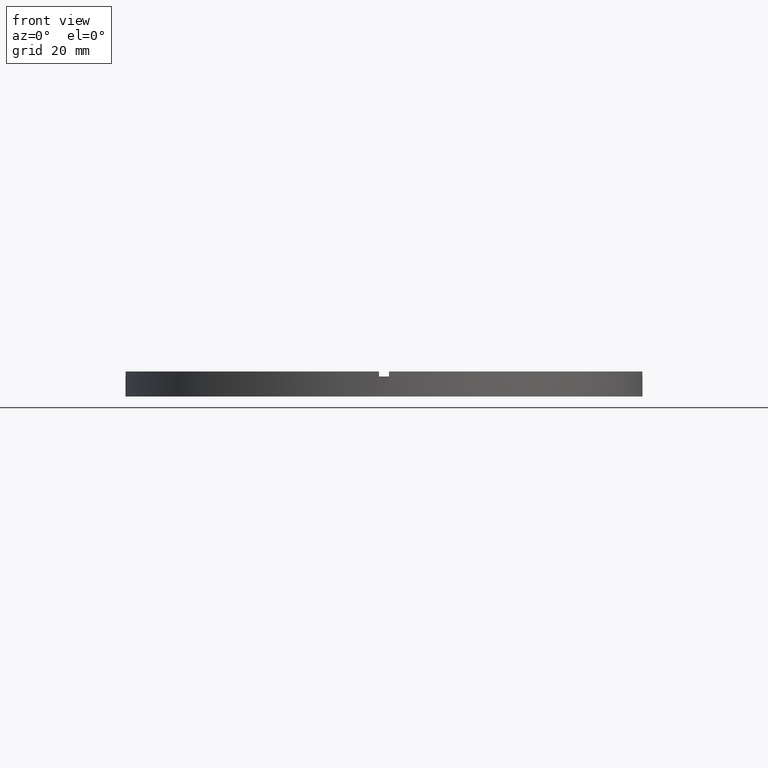
[diagram: clean part render]
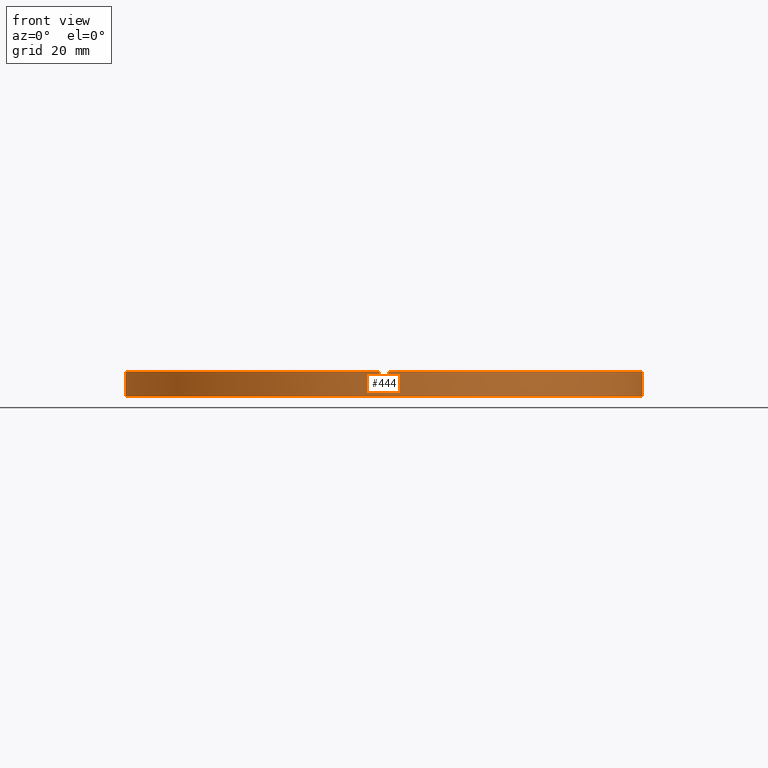
[diagram: same view with one face highlighted and labeled with its STEP entity id]
A machine part, front view. The second image highlights one B-rep face of the part: STEP entity #444.
In plain terms, the highlighted cylindrical surface (partial cylindrical patch) has radius 51.5 mm, axis along (-0, -0, -1).
Its self-contained STEP definition (entity closure, byte-faithful):
#9 = CIRCLE ( 'NONE', #555, 51.50000000000000000 ) ;
#15 = CIRCLE ( 'NONE', #724, 51.50000000000000000 ) ;
#23 = VECTOR ( 'NONE', #202, 1000.000000000000000 ) ;
#46 = CARTESIAN_POINT ( 'NONE',  ( -51.49029034682169481, -1.000000000000031974, 4.000000000000000000 ) ) ;
#48 = DIRECTION ( 'NONE',  ( -0.000000000000000000, 0.000000000000000000, 1.000000000000000000 ) ) ;
#52 = CARTESIAN_POINT ( 'NONE',  ( 51.49029034682169481, -1.000000000000154765, 5.000000000000000000 ) ) ;
#58 = CARTESIAN_POINT ( 'NONE',  ( 0.000000000000000000, 0.000000000000000000, 5.000000000000000000 ) ) ;
#62 = DIRECTION ( 'NONE',  ( 1.000000000000000000, 0.000000000000000000, 0.000000000000000000 ) ) ;
#63 = LINE ( 'NONE', #409, #64 ) ;
#64 = VECTOR ( 'NONE', #234, 1000.000000000000000 ) ;
#66 = DIRECTION ( 'NONE',  ( 1.000000000000000000, 0.000000000000000000, 0.000000000000000000 ) ) ;
#72 = VECTOR ( 'NONE', #738, 1000.000000000000000 ) ;
#89 = EDGE_CURVE ( 'NONE', #512, #117, #9, .T. ) ;
#93 = DIRECTION ( 'NONE',  ( -0.000000000000000000, -0.000000000000000000, -1.000000000000000000 ) ) ;
#102 = ORIENTED_EDGE ( 'NONE', *, *, #465, .F. ) ;
#103 = DIRECTION ( 'NONE',  ( 1.000000000000000000, 0.000000000000000000, 0.000000000000000000 ) ) ;
#108 = ORIENTED_EDGE ( 'NONE', *, *, #252, .F. ) ;
#112 = CARTESIAN_POINT ( 'NONE',  ( 0.9999999999998436806, -51.49029034682169481, 4.000000000000000000 ) ) ;
#115 = DIRECTION ( 'NONE',  ( 1.000000000000000000, 0.000000000000000000, 0.000000000000000000 ) ) ;
#117 = VERTEX_POINT ( 'NONE', #261 ) ;
#125 = CARTESIAN_POINT ( 'NONE',  ( 51.50000000000000000, 6.306931015608868807E-15, 4.000000000000000000 ) ) ;
#126 = ORIENTED_EDGE ( 'NONE', *, *, #458, .F. ) ;
#133 = VERTEX_POINT ( 'NONE', #210 ) ;
#135 = AXIS2_PLACEMENT_3D ( 'NONE', #632, #48, #349 ) ;
#139 = VERTEX_POINT ( 'NONE', #46 ) ;
#156 = EDGE_CURVE ( 'NONE', #403, #117, #571, .T. ) ;
#171 = ORIENTED_EDGE ( 'NONE', *, *, #636, .T. ) ;
#188 = CARTESIAN_POINT ( 'NONE',  ( 0.000000000000000000, 0.000000000000000000, 5.000000000000000000 ) ) ;
#194 = CARTESIAN_POINT ( 'NONE',  ( 0.000000000000000000, 0.000000000000000000, 5.000000000000000000 ) ) ;
#200 = DIRECTION ( 'NONE',  ( 1.000000000000000000, 0.000000000000000000, 0.000000000000000000 ) ) ;
#202 = DIRECTION ( 'NONE',  ( -0.000000000000000000, -0.000000000000000000, -1.000000000000000000 ) ) ;
#210 = CARTESIAN_POINT ( 'NONE',  ( -51.49029034682169481, -1.000000000000031974, 5.000000000000000000 ) ) ;
#218 = ORIENTED_EDGE ( 'NONE', *, *, #89, .T. ) ;
#234 = DIRECTION ( 'NONE',  ( -0.000000000000000000, -0.000000000000000000, -1.000000000000000000 ) ) ;
#240 = DIRECTION ( 'NONE',  ( -0.000000000000000000, -0.000000000000000000, -1.000000000000000000 ) ) ;
#249 = CARTESIAN_POINT ( 'NONE',  ( 0.000000000000000000, 0.000000000000000000, 0.000000000000000000 ) ) ;
#252 = EDGE_CURVE ( 'NONE', #133, #394, #290, .T. ) ;
#257 = CARTESIAN_POINT ( 'NONE',  ( -1.000000000000156319, -51.49029034682169481, 5.000000000000000000 ) ) ;
#258 = VERTEX_POINT ( 'NONE', #550 ) ;
#261 = CARTESIAN_POINT ( 'NONE',  ( 51.50000000000000000, 6.306931015608868807E-15, 0.000000000000000000 ) ) ;
#264 = VERTEX_POINT ( 'NONE', #112 ) ;
#273 = CYLINDRICAL_SURFACE ( 'NONE', #753, 51.50000000000000000 ) ;
#275 = LINE ( 'NONE', #52, #277 ) ;
#277 = VECTOR ( 'NONE', #600, 1000.000000000000000 ) ;
#279 = VECTOR ( 'NONE', #677, 1000.000000000000000 ) ;
#290 = CIRCLE ( 'NONE', #692, 51.50000000000000000 ) ;
#302 = DIRECTION ( 'NONE',  ( 0.000000000000000000, 0.000000000000000000, 1.000000000000000000 ) ) ;
#311 = CIRCLE ( 'NONE', #469, 51.50000000000000000 ) ;
#312 = VECTOR ( 'NONE', #93, 1000.000000000000000 ) ;
#330 = LINE ( 'NONE', #657, #312 ) ;
#349 = DIRECTION ( 'NONE',  ( 1.000000000000000000, 0.000000000000000000, 0.000000000000000000 ) ) ;
#363 = EDGE_CURVE ( 'NONE', #637, #394, #570, .T. ) ;
#377 = CARTESIAN_POINT ( 'NONE',  ( 0.9999999999998436806, -51.49029034682169481, 5.000000000000000000 ) ) ;
#383 = CARTESIAN_POINT ( 'NONE',  ( -1.000000000000156319, -51.49029034682169481, 5.000000000000000000 ) ) ;
#387 = VERTEX_POINT ( 'NONE', #750 ) ;
#390 = ORIENTED_EDGE ( 'NONE', *, *, #731, .T. ) ;
#394 = VERTEX_POINT ( 'NONE', #383 ) ;
#396 = VERTEX_POINT ( 'NONE', #464 ) ;
#403 = VERTEX_POINT ( 'NONE', #125 ) ;
#406 = VERTEX_POINT ( 'NONE', #377 ) ;
#409 = CARTESIAN_POINT ( 'NONE',  ( 0.9999999999998436806, -51.49029034682169481, 5.000000000000000000 ) ) ;
#434 = CARTESIAN_POINT ( 'NONE',  ( -51.50000000000000000, 0.000000000000000000, 0.000000000000000000 ) ) ;
#444 = ADVANCED_FACE ( 'NONE', ( #538 ), #273, .T. ) ;
#458 = EDGE_CURVE ( 'NONE', #387, #403, #15, .T. ) ;
#461 = EDGE_CURVE ( 'NONE', #387, #258, #275, .T. ) ;
#464 = CARTESIAN_POINT ( 'NONE',  ( -51.50000000000000000, 0.000000000000000000, 4.000000000000000000 ) ) ;
#465 = EDGE_CURVE ( 'NONE', #396, #139, #593, .T. ) ;
#469 = AXIS2_PLACEMENT_3D ( 'NONE', #194, #302, #62 ) ;
#494 = EDGE_CURVE ( 'NONE', #396, #512, #595, .T. ) ;
#505 = DIRECTION ( 'NONE',  ( 0.000000000000000000, 0.000000000000000000, 1.000000000000000000 ) ) ;
#512 = VERTEX_POINT ( 'NONE', #434 ) ;
#531 = DIRECTION ( 'NONE',  ( -1.000000000000000000, 0.000000000000000000, 0.000000000000000000 ) ) ;
#536 = CARTESIAN_POINT ( 'NONE',  ( -51.50000000000000000, 0.000000000000000000, 5.000000000000000000 ) ) ;
#538 = FACE_OUTER_BOUND ( 'NONE', #640, .T. ) ;
#550 = CARTESIAN_POINT ( 'NONE',  ( 51.49029034682169481, -1.000000000000154765, 5.000000000000000000 ) ) ;
#555 = AXIS2_PLACEMENT_3D ( 'NONE', #249, #776, #115 ) ;
#561 = EDGE_CURVE ( 'NONE', #406, #258, #311, .T. ) ;
#570 = LINE ( 'NONE', #257, #279 ) ;
#571 = LINE ( 'NONE', #664, #23 ) ;
#587 = CIRCLE ( 'NONE', #135, 51.50000000000000000 ) ;
#590 = CARTESIAN_POINT ( 'NONE',  ( -1.000000000000156319, -51.49029034682169481, 4.000000000000000000 ) ) ;
#593 = CIRCLE ( 'NONE', #619, 51.50000000000000000 ) ;
#594 = DIRECTION ( 'NONE',  ( 0.000000000000000000, 0.000000000000000000, 1.000000000000000000 ) ) ;
#595 = LINE ( 'NONE', #536, #72 ) ;
#600 = DIRECTION ( 'NONE',  ( 0.000000000000000000, 0.000000000000000000, 1.000000000000000000 ) ) ;
#619 = AXIS2_PLACEMENT_3D ( 'NONE', #745, #594, #103 ) ;
#632 = CARTESIAN_POINT ( 'NONE',  ( 0.000000000000000000, 0.000000000000000000, 4.000000000000000000 ) ) ;
#636 = EDGE_CURVE ( 'NONE', #133, #139, #330, .T. ) ;
#637 = VERTEX_POINT ( 'NONE', #590 ) ;
#640 = EDGE_LOOP ( 'NONE', ( #650, #126, #670, #718, #390, #685, #705, #108, #171, #102, #732, #218 ) ) ;
#650 = ORIENTED_EDGE ( 'NONE', *, *, #156, .F. ) ;
#657 = CARTESIAN_POINT ( 'NONE',  ( -51.49029034682169481, -1.000000000000031974, 5.000000000000000000 ) ) ;
#664 = CARTESIAN_POINT ( 'NONE',  ( 51.50000000000000000, 6.306931015608868807E-15, 5.000000000000000000 ) ) ;
#670 = ORIENTED_EDGE ( 'NONE', *, *, #461, .T. ) ;
#677 = DIRECTION ( 'NONE',  ( 0.000000000000000000, 0.000000000000000000, 1.000000000000000000 ) ) ;
#685 = ORIENTED_EDGE ( 'NONE', *, *, #694, .F. ) ;
#692 = AXIS2_PLACEMENT_3D ( 'NONE', #58, #505, #200 ) ;
#694 = EDGE_CURVE ( 'NONE', #637, #264, #587, .T. ) ;
#705 = ORIENTED_EDGE ( 'NONE', *, *, #363, .T. ) ;
#718 = ORIENTED_EDGE ( 'NONE', *, *, #561, .F. ) ;
#719 = CARTESIAN_POINT ( 'NONE',  ( 0.000000000000000000, 0.000000000000000000, 4.000000000000000000 ) ) ;
#724 = AXIS2_PLACEMENT_3D ( 'NONE', #719, #727, #66 ) ;
#727 = DIRECTION ( 'NONE',  ( 0.000000000000000000, 0.000000000000000000, 1.000000000000000000 ) ) ;
#731 = EDGE_CURVE ( 'NONE', #406, #264, #63, .T. ) ;
#732 = ORIENTED_EDGE ( 'NONE', *, *, #494, .T. ) ;
#738 = DIRECTION ( 'NONE',  ( -0.000000000000000000, -0.000000000000000000, -1.000000000000000000 ) ) ;
#745 = CARTESIAN_POINT ( 'NONE',  ( 0.000000000000000000, 0.000000000000000000, 4.000000000000000000 ) ) ;
#750 = CARTESIAN_POINT ( 'NONE',  ( 51.49029034682169481, -1.000000000000154765, 4.000000000000000000 ) ) ;
#753 = AXIS2_PLACEMENT_3D ( 'NONE', #188, #240, #531 ) ;
#776 = DIRECTION ( 'NONE',  ( 0.000000000000000000, 0.000000000000000000, 1.000000000000000000 ) ) ;